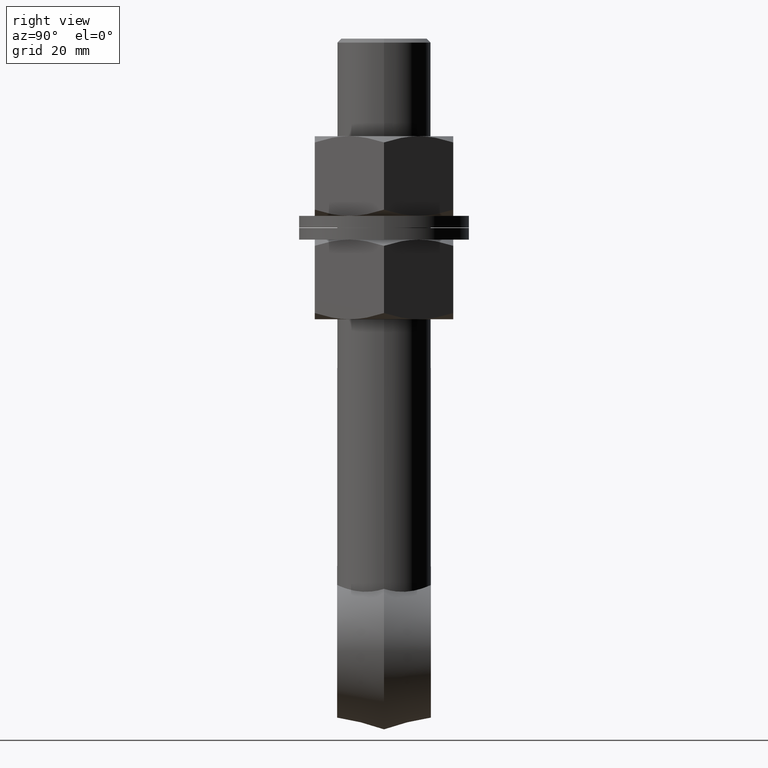
[diagram: clean part render]
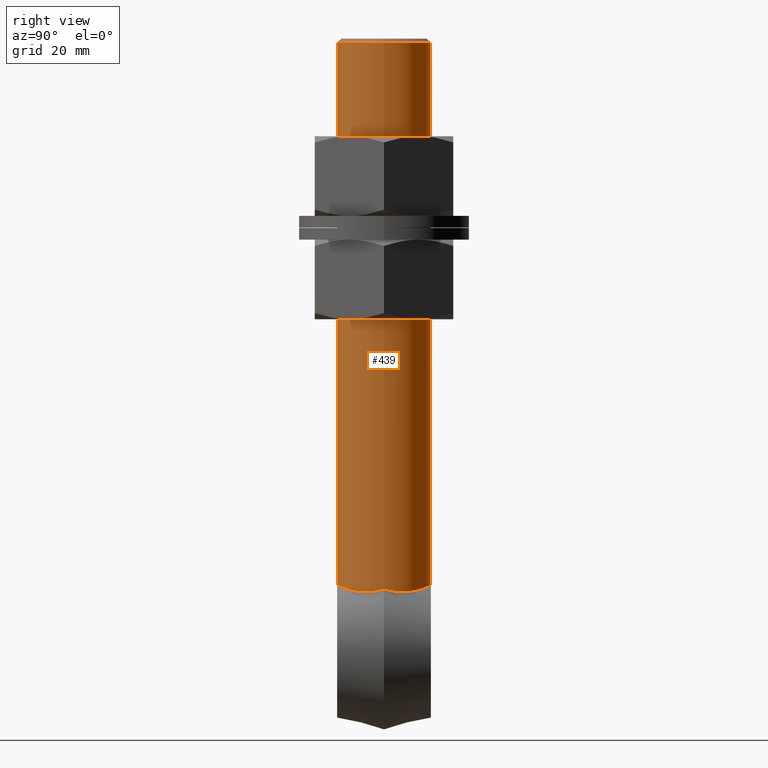
[diagram: same view with one face highlighted and labeled with its STEP entity id]
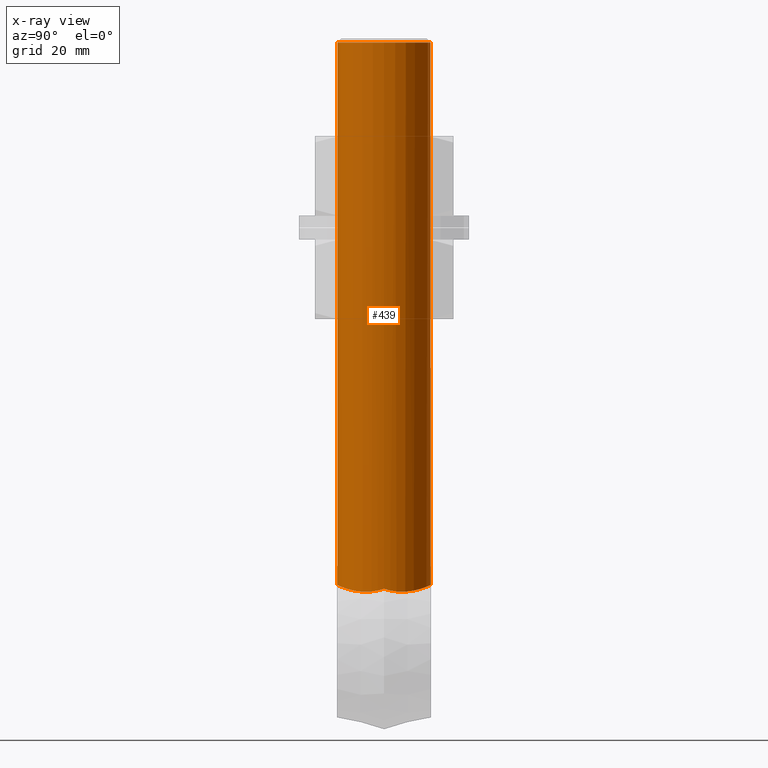
[diagram: x-ray of the same camera — body ghosted, the highlighted face saturated]
A machine part, right view. The second image highlights one B-rep face of the part: STEP entity #439.
The next image is the same camera in x-ray: the body ghosted, the highlighted face saturated — about 0% of this face is hidden behind the body in this view.
In plain terms, the highlighted cylindrical surface (bore or boss wall) has radius 12 mm, axis along (0, 0, 1).
Its self-contained STEP definition (entity closure, byte-faithful):
#11 = CARTESIAN_POINT ( 'NONE',  ( -11.92761831604180500, -1.531024171133894995, -62.92534252757897661 ) ) ;
#79 = CARTESIAN_POINT ( 'NONE',  ( -11.60760801974493717, -3.069533147876791546, -63.16500374693169562 ) ) ;
#101 = CARTESIAN_POINT ( 'NONE',  ( -3.885916016990405009, -11.38064160097000155, -61.77500307623807885 ) ) ;
#150 = CARTESIAN_POINT ( 'NONE',  ( 11.85061586683921675, 1.927435193889005527, -62.99125406621337930 ) ) ;
#182 = B_SPLINE_CURVE_WITH_KNOTS ( 'NONE', 3,
 ( #5191, #3738, #5202, #838, #2322, #1817, #1781, #2276, #3282, #4202, #1308, #4256, #6230, #3750, #1798, #5700, #2358, #372, #2747, #2825, #1269, #2783, #6186, #4734, #3769, #4750, #3271, #351 ),
 .UNSPECIFIED., .F., .F.,
 ( 4, 2, 2, 2, 2, 2, 2, 2, 2, 2, 2, 2, 2, 4 ),
 ( 0.01897574673981372584, 0.02134900025475552562, 0.02253562701222642378, 0.02372225376969732194, 0.02490888052716822010, 0.02609550728463911826, 0.02846876079958091110, 0.02965538755705180232, 0.03084201431452269701, 0.03321526782946448986, 0.03440189458693538455, 0.03558852134440627923, 0.03677514810187718086, 0.03796177485934806861 ),
 .UNSPECIFIED. ) ;
#189 = CARTESIAN_POINT ( 'NONE',  ( 3.888280768092620576, 11.35944981505953777, -61.78187501840149309 ) ) ;
#277 = CARTESIAN_POINT ( 'NONE',  ( -11.99999999999998757, -1.844819512678775955E-16, -62.49999999999998579 ) ) ;
#351 = CARTESIAN_POINT ( 'NONE',  ( 12.00000000000000888, 0.000000000000000000, -62.50000000000000000 ) ) ;
#372 = CARTESIAN_POINT ( 'NONE',  ( 10.41586470698048217, -6.010396651135312851, -63.20835509728934909 ) ) ;
#395 = VERTEX_POINT ( 'NONE', #1069 ) ;
#439 = ADVANCED_FACE ( 'NONE', ( #2556, #1478 ), #5503, .T. ) ;
#464 = CARTESIAN_POINT ( 'NONE',  ( 1.029099100978733200E-14, 11.99999999999999822, -61.50000000000000000 ) ) ;
#583 = CARTESIAN_POINT ( 'NONE',  ( -9.537102222980822219, -7.326066664136816620, -63.03028581562199406 ) ) ;
#603 = B_SPLINE_CURVE_WITH_KNOTS ( 'NONE', 3,
 ( #2111, #5964, #2592, #1593, #4978, #189, #1168, #2153, #1656, #1613, #5987, #1631, #3577, #5022, #2135, #4494, #2090, #5530, #609, #3073, #669, #5475, #5004, #150, #2571, #3556, #4094, #5508 ),
 .UNSPECIFIED., .F., .F.,
 ( 4, 2, 2, 2, 2, 2, 2, 2, 2, 2, 2, 2, 2, 4 ),
 ( 0.01897574673981372584, 0.02134900025475552215, 0.02253562701222642031, 0.02372225376969731847, 0.02490888052716821663, 0.02609550728463911479, 0.02846876079958090763, 0.02965538755705180232, 0.03084201431452270048, 0.03321526782946448292, 0.03440189458693537761, 0.03558852134440626536, 0.03677514810187716005, 0.03796177485934805473 ),
 .UNSPECIFIED. ) ;
#609 = CARTESIAN_POINT ( 'NONE',  ( 10.78692974266802374, 5.317603474778096917, -63.25886867504775068 ) ) ;
#669 = CARTESIAN_POINT ( 'NONE',  ( 11.37839950849530979, 3.832610746878162278, -63.23143552715870896 ) ) ;
#737 = CARTESIAN_POINT ( 'NONE',  ( 1.029099100978733200E-14, -12.00000000000000355, -61.50000000000001421 ) ) ;
#838 = CARTESIAN_POINT ( 'NONE',  ( 2.745204747942250112, -11.68850819083718307, -61.63969994436111932 ) ) ;
#892 = EDGE_LOOP ( 'NONE', ( #4179 ) ) ;
#905 = CARTESIAN_POINT ( 'NONE',  ( -6.021917065271267688, 10.38697612812004856, -62.16809269785687064 ) ) ;
#934 = CARTESIAN_POINT ( 'NONE',  ( -11.99999999999998757, -1.844819512678775955E-16, -62.49999999999998579 ) ) ;
#959 = CARTESIAN_POINT ( 'NONE',  ( -5.333258489923651702, 10.75681700628947191, -62.02755736681547916 ) ) ;
#992 = CARTESIAN_POINT ( 'NONE',  ( -5.333258489923650814, -10.75681700628947013, -62.02755736681547916 ) ) ;
#1007 = CARTESIAN_POINT ( 'NONE',  ( -6.021917065271264136, -10.38697612812004678, -62.16809269785687064 ) ) ;
#1069 = CARTESIAN_POINT ( 'NONE',  ( 12.00000000000000888, 0.000000000000000000, 77.50000000000000000 ) ) ;
#1071 = CARTESIAN_POINT ( 'NONE',  ( -8.208012400894201477, -8.762550383459833725, -62.69243848771634475 ) ) ;
#1168 = CARTESIAN_POINT ( 'NONE',  ( 4.257320520082707560, 11.22622827775585819, -61.83799615070910960 ) ) ;
#1269 = CARTESIAN_POINT ( 'NONE',  ( 11.37839950849530979, -3.832610746878161834, -63.23143552715869475 ) ) ;
#1308 = CARTESIAN_POINT ( 'NONE',  ( 6.361009558830946986, -10.18285072719472417, -62.24276072907375124 ) ) ;
#1385 = CARTESIAN_POINT ( 'NONE',  ( -11.92761831604181033, 1.531024171133896106, -62.92534252757896240 ) ) ;
#1407 = CARTESIAN_POINT ( 'NONE',  ( -10.94455014418182159, 4.936916894232386888, -63.25581028011724527 ) ) ;
#1435 = CARTESIAN_POINT ( 'NONE',  ( -3.885916016990407229, 11.38064160096999800, -61.77500307623807885 ) ) ;
#1455 = CARTESIAN_POINT ( 'NONE',  ( -7.312459991293820849, 9.522613974822384364, -62.46684385789868799 ) ) ;
#1478 = FACE_OUTER_BOUND ( 'NONE', #3003, .T. ) ;
#1567 = CARTESIAN_POINT ( 'NONE',  ( -10.19733724534663466, -6.338075890947248325, -63.16416282541148774 ) ) ;
#1584 = ORIENTED_EDGE ( 'NONE', *, *, #5315, .T. ) ;
#1593 = CARTESIAN_POINT ( 'NONE',  ( 2.745204747942247892, 11.68850819083718129, -61.63969994436109090 ) ) ;
#1613 = CARTESIAN_POINT ( 'NONE',  ( 6.022448742681573819, 10.38670005905538218, -62.16819885480086327 ) ) ;
#1631 = CARTESIAN_POINT ( 'NONE',  ( 7.335121922765115876, 9.529299687681438868, -62.46843851434284289 ) ) ;
#1656 = CARTESIAN_POINT ( 'NONE',  ( 5.332276508633296608, 10.75733490277612248, -62.02735931738078534 ) ) ;
#1781 = CARTESIAN_POINT ( 'NONE',  ( 4.257320520082707560, -11.22622827775585641, -61.83799615070910249 ) ) ;
#1790 = VERTEX_POINT ( 'NONE', #737 ) ;
#1798 = CARTESIAN_POINT ( 'NONE',  ( 9.027324822129729753, -7.916038621038394396, -62.90114761100505802 ) ) ;
#1817 = CARTESIAN_POINT ( 'NONE',  ( 3.888280768092625017, -11.35944981505953422, -61.78187501840149309 ) ) ;
#1872 = CARTESIAN_POINT ( 'NONE',  ( -0.7965141658374820244, 11.98018143428083349, -61.50906478580740355 ) ) ;
#1899 = CARTESIAN_POINT ( 'NONE',  ( -8.208012400894206806, 8.762550383459830172, -62.69243848771634475 ) ) ;
#1940 = CARTESIAN_POINT ( 'NONE',  ( -10.77607865961661915, 5.294646659168848579, -63.24518484463396817 ) ) ;
#1994 = CARTESIAN_POINT ( 'NONE',  ( -9.039820967840467958, -7.930741708882742103, -62.90469370393574167 ) ) ;
#2075 = CARTESIAN_POINT ( 'NONE',  ( -11.37855487538359611, -3.832373498740130113, -63.23147599581373157 ) ) ;
#2084 = DIRECTION ( 'NONE',  ( 0.000000000000000000, 0.000000000000000000, -1.000000000000000000 ) ) ;
#2090 = CARTESIAN_POINT ( 'NONE',  ( 9.762682530774872802, 6.988834393361186947, -63.07608594815104652 ) ) ;
#2111 = CARTESIAN_POINT ( 'NONE',  ( 1.029099100978733200E-14, 11.99999999999999822, -61.50000000000000000 ) ) ;
#2121 = VERTEX_POINT ( 'NONE', #2729 ) ;
#2135 = CARTESIAN_POINT ( 'NONE',  ( 9.027324822129727977, 7.916038621038399725, -62.90114761100504381 ) ) ;
#2153 = CARTESIAN_POINT ( 'NONE',  ( 4.979319080313739043, 10.92517097584409136, -61.96073453054099645 ) ) ;
#2276 = CARTESIAN_POINT ( 'NONE',  ( 4.979319080313740820, -10.92517097584408958, -61.96073453054102487 ) ) ;
#2296 = AXIS2_PLACEMENT_3D ( 'NONE', #3501, #2084, #3453 ) ;
#2322 = CARTESIAN_POINT ( 'NONE',  ( 3.133325618731000350, -11.59043131205129384, -61.68280052453410178 ) ) ;
#2358 = CARTESIAN_POINT ( 'NONE',  ( 9.762682530774878131, -6.988834393361178066, -63.07608594815106073 ) ) ;
#2409 = CARTESIAN_POINT ( 'NONE',  ( -10.19733724534663999, 6.338075890947240332, -63.16416282541144511 ) ) ;
#2431 = CARTESIAN_POINT ( 'NONE',  ( -0.3962231239944122296, 11.99999999999999822, -61.50000000000000711 ) ) ;
#2469 = CARTESIAN_POINT ( 'NONE',  ( -3.137658810406749765, -11.60918579277585572, -61.67490414704098356 ) ) ;
#2550 = CARTESIAN_POINT ( 'NONE',  ( -4.975709026723778905, -10.92690058143604581, -61.96004921225004836 ) ) ;
#2556 = FACE_OUTER_BOUND ( 'NONE', #892, .T. ) ;
#2571 = CARTESIAN_POINT ( 'NONE',  ( 11.90668240316244031, 1.543122300174539108, -62.91317160313622736 ) ) ;
#2592 = CARTESIAN_POINT ( 'NONE',  ( 1.578264663069156803, 11.92218822175177806, -61.53593948418160409 ) ) ;
#2729 = CARTESIAN_POINT ( 'NONE',  ( 12.00000000000000888, 0.000000000000000000, -62.50000000000000000 ) ) ;
#2747 = CARTESIAN_POINT ( 'NONE',  ( 10.78692974266802374, -5.317603474778093364, -63.25886867504772226 ) ) ;
#2783 = CARTESIAN_POINT ( 'NONE',  ( 11.60636313934416997, -3.073957577730234370, -63.16545004952286746 ) ) ;
#2825 = CARTESIAN_POINT ( 'NONE',  ( 11.24317349234320851, -4.213044008567698562, -63.24927428520284423 ) ) ;
#2881 = CARTESIAN_POINT ( 'NONE',  ( -4.975709026723781570, 10.92690058143604226, -61.96004921225002704 ) ) ;
#2945 = CARTESIAN_POINT ( 'NONE',  ( 1.029099100978733200E-14, -12.00000000000000355, -61.50000000000001421 ) ) ;
#2968 = CARTESIAN_POINT ( 'NONE',  ( -11.70279155866296605, -2.682852616326438788, -63.11603292040224034 ) ) ;
#2986 = CARTESIAN_POINT ( 'NONE',  ( -11.24578767158505066, -4.205780061379012835, -63.24895607204356196 ) ) ;
#3003 = EDGE_LOOP ( 'NONE', ( #4241, #1584, #3396, #5098 ) ) ;
#3039 = CARTESIAN_POINT ( 'NONE',  ( -10.94455014418182337, -4.936916894232387776, -63.25581028011725948 ) ) ;
#3073 = CARTESIAN_POINT ( 'NONE',  ( 11.24317349234320496, 4.213044008567703891, -63.24927428520283001 ) ) ;
#3271 = CARTESIAN_POINT ( 'NONE',  ( 12.00000000000000888, -0.3833337044228378176, -62.61979178263214862 ) ) ;
#3282 = CARTESIAN_POINT ( 'NONE',  ( 5.332276508633297496, -10.75733490277612070, -62.02735931738079955 ) ) ;
#3342 = VERTEX_POINT ( 'NONE', #464 ) ;
#3379 = CARTESIAN_POINT ( 'NONE',  ( -11.60760801974494605, 3.069533147876792434, -63.16500374693170983 ) ) ;
#3396 = ORIENTED_EDGE ( 'NONE', *, *, #5218, .T. ) ;
#3442 = CARTESIAN_POINT ( 'NONE',  ( -10.77607865961661915, -5.294646659168849467, -63.24518484463396817 ) ) ;
#3453 = DIRECTION ( 'NONE',  ( 1.000000000000000000, 0.000000000000000000, 0.000000000000000000 ) ) ;
#3465 = CARTESIAN_POINT ( 'NONE',  ( -10.40314104299776155, -5.994314886889747562, -63.19951344410006300 ) ) ;
#3486 = VERTEX_POINT ( 'NONE', #277 ) ;
#3501 = CARTESIAN_POINT ( 'NONE',  ( 1.029099100978733200E-14, 0.000000000000000000, 77.50000000000000000 ) ) ;
#3509 = CARTESIAN_POINT ( 'NONE',  ( -1.981538541754105154, -11.84179164666271866, -61.57164621086307932 ) ) ;
#3556 = CARTESIAN_POINT ( 'NONE',  ( 11.98145886675593985, 0.7713337198057415023, -62.72758126885396024 ) ) ;
#3557 = DIRECTION ( 'NONE',  ( 0.000000000000000000, 0.000000000000000000, 1.000000000000000000 ) ) ;
#3577 = CARTESIAN_POINT ( 'NONE',  ( 7.934451665007176580, 9.036258144501124079, -62.62263515771558531 ) ) ;
#3738 = CARTESIAN_POINT ( 'NONE',  ( 0.7928842464397646284, -12.00000000000000000, -61.50000000000002842 ) ) ;
#3750 = CARTESIAN_POINT ( 'NONE',  ( 8.762393202535349701, -8.208095789143905918, -62.83390056971896342 ) ) ;
#3769 = CARTESIAN_POINT ( 'NONE',  ( 11.90668240316244209, -1.543122300174527339, -62.91317160313619894 ) ) ;
#3808 = CARTESIAN_POINT ( 'NONE',  ( -9.039820967840476840, 7.930741708882742103, -62.90469370393575588 ) ) ;
#3901 = CARTESIAN_POINT ( 'NONE',  ( -1.590510036362915880, -11.90081761220193535, -61.54500737675402888 ) ) ;
#4094 = CARTESIAN_POINT ( 'NONE',  ( 12.00000000000000533, 0.3833337044228443680, -62.61979178263213441 ) ) ;
#4179 = ORIENTED_EDGE ( 'NONE', *, *, #4567, .T. ) ;
#4202 = CARTESIAN_POINT ( 'NONE',  ( 6.022448742681576483, -10.38670005905537685, -62.16819885480087038 ) ) ;
#4210 = CARTESIAN_POINT ( 'NONE',  ( -11.37855487538359789, 3.832373498740131890, -63.23147599581375999 ) ) ;
#4241 = ORIENTED_EDGE ( 'NONE', *, *, #6205, .F. ) ;
#4256 = CARTESIAN_POINT ( 'NONE',  ( 7.335121922765113212, -9.529299687681435316, -62.46843851434285710 ) ) ;
#4396 = CARTESIAN_POINT ( 'NONE',  ( -0.7965141658374813582, -11.98018143428083171, -61.50906478580741776 ) ) ;
#4474 = CARTESIAN_POINT ( 'NONE',  ( -7.915630719815854199, -9.027460237811229860, -62.61748056766877824 ) ) ;
#4494 = CARTESIAN_POINT ( 'NONE',  ( 9.528721834374536570, 7.304773856672430732, -63.02255187385120649 ) ) ;
#4511 = DIRECTION ( 'NONE',  ( 1.000000000000000000, 0.000000000000000000, 0.000000000000000000 ) ) ;
#4567 = EDGE_CURVE ( 'NONE', #395, #395, #4888, .T. ) ;
#4734 = CARTESIAN_POINT ( 'NONE',  ( 11.85061586683922208, -1.927435193888992426, -62.99125406621340773 ) ) ;
#4750 = CARTESIAN_POINT ( 'NONE',  ( 11.98145886675594873, -0.7713337198057270694, -62.72758126885396024 ) ) ;
#4772 = CARTESIAN_POINT ( 'NONE',  ( -7.000425236267372675, 9.754221435289709419, -62.39083683729833041 ) ) ;
#4795 = CARTESIAN_POINT ( 'NONE',  ( -11.24578767158504888, 4.205780061379008394, -63.24895607204357617 ) ) ;
#4813 = CARTESIAN_POINT ( 'NONE',  ( -10.40314104299775977, 5.994314886889747562, -63.19951344410006300 ) ) ;
#4832 = CARTESIAN_POINT ( 'NONE',  ( -1.981538541754105598, 11.84179164666271866, -61.57164621086308642 ) ) ;
#4881 = CARTESIAN_POINT ( 'NONE',  ( -7.312459991293811967, -9.522613974822384364, -62.46684385789868799 ) ) ;
#4888 = CIRCLE ( 'NONE', #2296, 11.99999999999999822 ) ;
#4897 = CARTESIAN_POINT ( 'NONE',  ( -11.99999999999998579, -0.7649367376878903890, -62.73904273052747982 ) ) ;
#4954 = B_SPLINE_CURVE_WITH_KNOTS ( 'NONE', 3,
 ( #4960, #4897, #11, #2968, #79, #2075, #2986, #3039, #3442, #3465, #1567, #583, #1994, #1071, #4474, #4881, #5369, #5452, #1007, #992, #2550, #101, #2469, #3509, #3901, #4396, #5864, #2945 ),
 .UNSPECIFIED., .F., .F.,
 ( 4, 2, 2, 2, 2, 2, 2, 2, 2, 2, 2, 2, 2, 4 ),
 ( 2.067223480030511532E-07, 0.002372149224531225689, 0.003558120475622834206, 0.004744091726714443590, 0.005930062977806051239, 0.007116034228897659755, 0.009487976731080876788, 0.01067394798217248010, 0.01185991923326408341, 0.01304589048435569019, 0.01423186173544729524, 0.01660380423763050881, 0.01778977548872211906, 0.01897574673981372584 ),
 .UNSPECIFIED. ) ;
#4960 = CARTESIAN_POINT ( 'NONE',  ( -11.99999999999998757, -1.844819512678775955E-16, -62.49999999999998579 ) ) ;
#4978 = CARTESIAN_POINT ( 'NONE',  ( 3.133325618730995465, 11.59043131205129740, -61.68280052453409468 ) ) ;
#5004 = CARTESIAN_POINT ( 'NONE',  ( 11.70045512062455373, 2.692852172005367972, -63.11739602827876183 ) ) ;
#5022 = CARTESIAN_POINT ( 'NONE',  ( 8.762393202535344372, 8.208095789143909471, -62.83390056971893500 ) ) ;
#5098 = ORIENTED_EDGE ( 'NONE', *, *, #5335, .F. ) ;
#5191 = CARTESIAN_POINT ( 'NONE',  ( 1.029099100978733200E-14, -12.00000000000000355, -61.50000000000001421 ) ) ;
#5202 = CARTESIAN_POINT ( 'NONE',  ( 1.578264663069159246, -11.92218822175178516, -61.53593948418166093 ) ) ;
#5218 = EDGE_CURVE ( 'NONE', #1790, #2121, #182, .T. ) ;
#5274 = CARTESIAN_POINT ( 'NONE',  ( -3.137658810406749765, 11.60918579277585572, -61.67490414704096224 ) ) ;
#5296 = CARTESIAN_POINT ( 'NONE',  ( -9.537102222980822219, 7.326066664136813955, -63.03028581562196564 ) ) ;
#5315 = EDGE_CURVE ( 'NONE', #3486, #1790, #4954, .T. ) ;
#5321 = CARTESIAN_POINT ( 'NONE',  ( -1.590510036362916102, 11.90081761220193890, -61.54500737675400046 ) ) ;
#5335 = EDGE_CURVE ( 'NONE', #3342, #2121, #603, .T. ) ;
#5339 = CARTESIAN_POINT ( 'NONE',  ( -11.99999999999998757, 0.7649367376878907221, -62.73904273052743719 ) ) ;
#5369 = CARTESIAN_POINT ( 'NONE',  ( -7.000425236267370011, -9.754221435289711195, -62.39083683729831620 ) ) ;
#5452 = CARTESIAN_POINT ( 'NONE',  ( -6.355153300785195469, -10.18640347820334924, -62.24146620582740752 ) ) ;
#5475 = CARTESIAN_POINT ( 'NONE',  ( 11.60636313934416641, 3.073957577730236590, -63.16545004952286746 ) ) ;
#5503 = CYLINDRICAL_SURFACE ( 'NONE', #6206, 11.99999999999999822 ) ;
#5508 = CARTESIAN_POINT ( 'NONE',  ( 12.00000000000000888, 0.000000000000000000, -62.50000000000000000 ) ) ;
#5530 = CARTESIAN_POINT ( 'NONE',  ( 10.41586470698047506, 6.010396651135318180, -63.20835509728933488 ) ) ;
#5535 = B_SPLINE_CURVE_WITH_KNOTS ( 'NONE', 3,
 ( #934, #5339, #1385, #5649, #3379, #4210, #4795, #1407, #1940, #4813, #2409, #5296, #3808, #1899, #5791, #1455, #4772, #6147, #905, #959, #2881, #1435, #5274, #4832, #5321, #1872, #2431, #5811 ),
 .UNSPECIFIED., .F., .F.,
 ( 4, 2, 2, 2, 2, 2, 2, 2, 2, 2, 2, 2, 2, 4 ),
 ( 2.067223480027144046E-07, 0.002372149224531227424, 0.003558120475622835507, 0.004744091726714443590, 0.005930062977806051239, 0.007116034228897659755, 0.009487976731080880258, 0.01067394798217248357, 0.01185991923326408688, 0.01304589048435569193, 0.01423186173544729524, 0.01660380423763050881, 0.01778977548872211906, 0.01897574673981372584 ),
 .UNSPECIFIED. ) ;
#5649 = CARTESIAN_POINT ( 'NONE',  ( -11.70279155866296961, 2.682852616326439676, -63.11603292040222613 ) ) ;
#5700 = CARTESIAN_POINT ( 'NONE',  ( 9.528721834374538346, -7.304773856672423626, -63.02255187385123492 ) ) ;
#5791 = CARTESIAN_POINT ( 'NONE',  ( -7.915630719815857752, 9.027460237811228083, -62.61748056766877824 ) ) ;
#5811 = CARTESIAN_POINT ( 'NONE',  ( 1.029099100978733200E-14, 11.99999999999999822, -61.50000000000000000 ) ) ;
#5864 = CARTESIAN_POINT ( 'NONE',  ( -0.3962231239944120076, -12.00000000000000178, -61.50000000000002132 ) ) ;
#5927 = CARTESIAN_POINT ( 'NONE',  ( 1.029099100978733200E-14, 0.000000000000000000, -98.50199999999999534 ) ) ;
#5964 = CARTESIAN_POINT ( 'NONE',  ( 0.7928842464397639622, 12.00000000000000000, -61.50000000000001421 ) ) ;
#5987 = CARTESIAN_POINT ( 'NONE',  ( 6.361009558830947874, 10.18285072719472417, -62.24276072907373702 ) ) ;
#6147 = CARTESIAN_POINT ( 'NONE',  ( -6.355153300785198134, 10.18640347820334924, -62.24146620582740042 ) ) ;
#6186 = CARTESIAN_POINT ( 'NONE',  ( 11.70045512062455373, -2.692852172005355094, -63.11739602827879025 ) ) ;
#6205 = EDGE_CURVE ( 'NONE', #3486, #3342, #5535, .T. ) ;
#6206 = AXIS2_PLACEMENT_3D ( 'NONE', #5927, #3557, #4511 ) ;
#6230 = CARTESIAN_POINT ( 'NONE',  ( 7.934451665007178356, -9.036258144501125855, -62.62263515771559952 ) ) ;